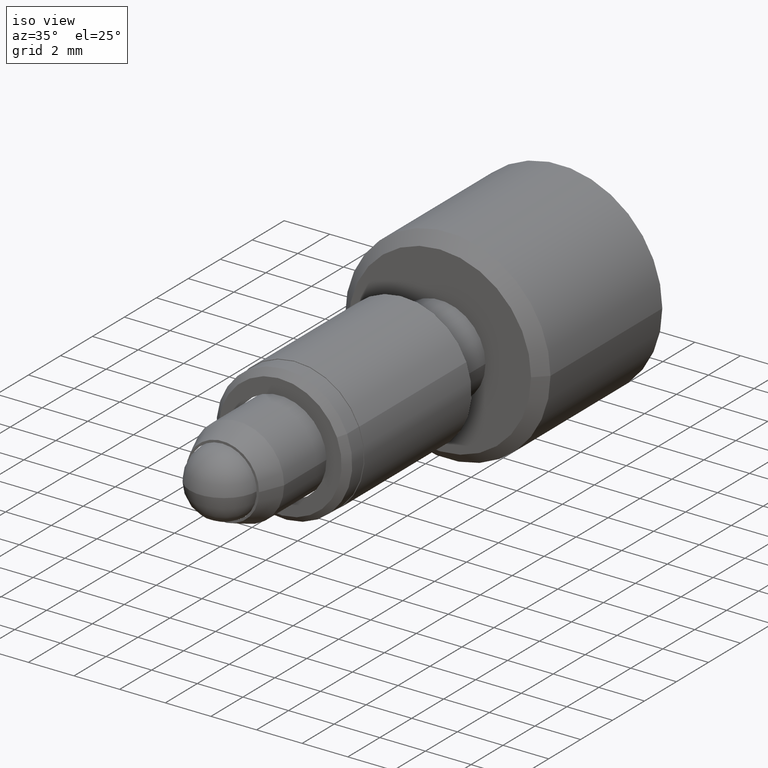
[diagram: clean part render]
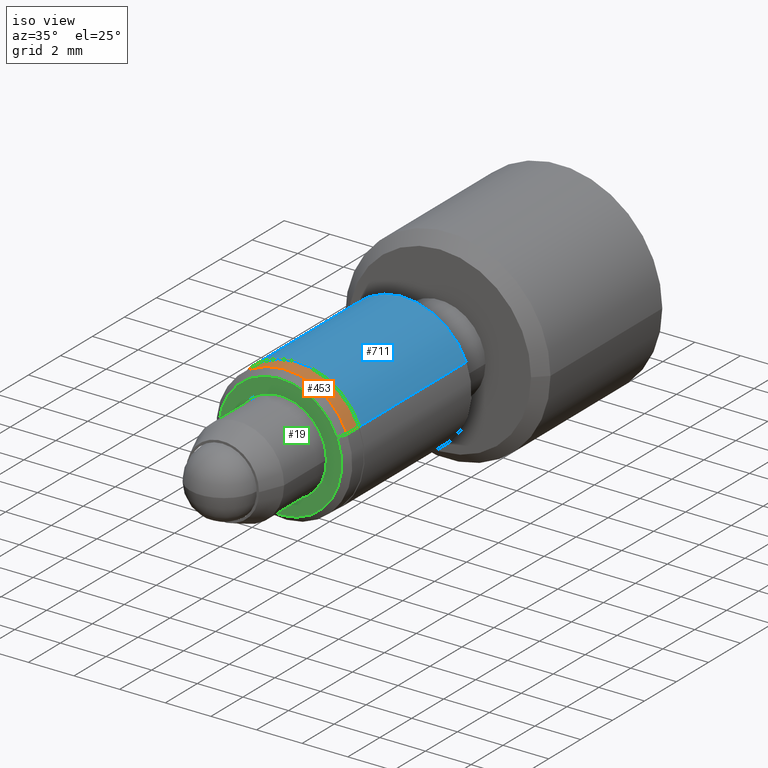
[diagram: same view with three faces highlighted in distinct colors, each labeled with its STEP entity id]
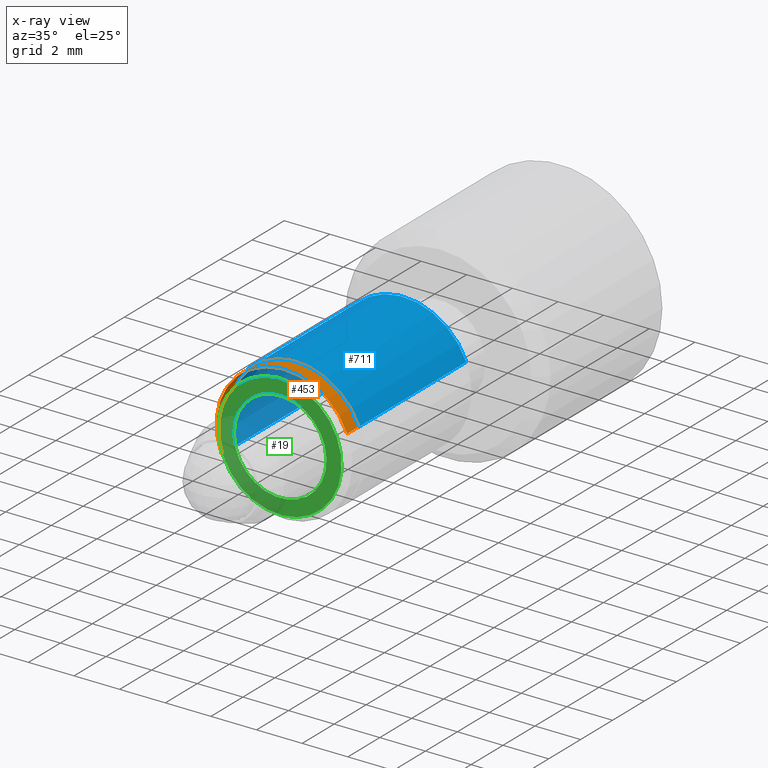
[diagram: x-ray of the same camera — body ghosted, the three highlighted faces saturated]
A machine part, iso view with three faces highlighted in distinct colors.
The next image is the same camera in x-ray (body ghosted, the three faces saturated) — at least one of them is partly hidden behind the body in this view.
Their STEP definitions:

[orange] entity #453 — the highlighted cylindrical surface (partial cylindrical patch) has radius 2.975 mm, axis along (-0, -1, -0).
#7 = DIRECTION ( 'NONE',  ( -0.9234093634715820900, 0.0000000000000000000, -0.3838165544280334200 ) ) ;
#23 = DIRECTION ( 'NONE',  ( -9.496758840798626900E-017, -1.000000000000000000, -3.947342750354810800E-017 ) ) ;
#29 = CARTESIAN_POINT ( 'NONE',  ( 8.886313430823046000, 10.63143070247039500, 17.11623035873974200 ) ) ;
#58 = ORIENTED_EDGE ( 'NONE', *, *, #676, .F. ) ;
#79 = CIRCLE ( 'NONE', #441, 2.974999999999999200 ) ;
#89 = CYLINDRICAL_SURFACE ( 'NONE', #806, 2.974999999999999200 ) ;
#93 = VERTEX_POINT ( 'NONE', #519 ) ;
#95 = DIRECTION ( 'NONE',  ( -9.496758840798596100E-017, -1.000000000000000000, -3.947342750354797800E-017 ) ) ;
#96 = CARTESIAN_POINT ( 'NONE',  ( 6.139170574495089700, 10.63143070247039500, 15.97437610931634200 ) ) ;
#115 = CARTESIAN_POINT ( 'NONE',  ( 11.63345628715099300, 9.906430702470395000, 18.25808460816314100 ) ) ;
#244 = ORIENTED_EDGE ( 'NONE', *, *, #304, .T. ) ;
#304 = EDGE_CURVE ( 'NONE', #93, #953, #436, .T. ) ;
#306 = ORIENTED_EDGE ( 'NONE', *, *, #391, .T. ) ;
#358 = DIRECTION ( 'NONE',  ( -9.496758840798626900E-017, -1.000000000000000000, -3.947342750354810800E-017 ) ) ;
#391 = EDGE_CURVE ( 'NONE', #1103, #93, #79, .T. ) ;
#436 = LINE ( 'NONE', #96, #1070 ) ;
#441 = AXIS2_PLACEMENT_3D ( 'NONE', #535, #23, #615 ) ;
#453 = ADVANCED_FACE ( 'NONE', ( #654 ), #89, .T. ) ;
#459 = VECTOR ( 'NONE', #642, 1000.000000000000000 ) ;
#460 = VERTEX_POINT ( 'NONE', #115 ) ;
#519 = CARTESIAN_POINT ( 'NONE',  ( 6.139170574495088000, 10.63143070247039500, 15.97437610931634200 ) ) ;
#523 = DIRECTION ( 'NONE',  ( -9.496758840798626900E-017, -1.000000000000000000, -3.947342750354810800E-017 ) ) ;
#535 = CARTESIAN_POINT ( 'NONE',  ( 8.886313430823046000, 10.63143070247039500, 17.11623035873974200 ) ) ;
#543 = DIRECTION ( 'NONE',  ( 0.9234093634715820900, 0.0000000000000000000, 0.3838165544280337000 ) ) ;
#615 = DIRECTION ( 'NONE',  ( 0.9234093634715820900, 0.0000000000000000000, 0.3838165544280337000 ) ) ;
#642 = DIRECTION ( 'NONE',  ( -9.496758840798626900E-017, -1.000000000000000000, -3.947342750354810800E-017 ) ) ;
#654 = FACE_OUTER_BOUND ( 'NONE', #1001, .T. ) ;
#676 = EDGE_CURVE ( 'NONE', #1103, #460, #1056, .T. ) ;
#750 = EDGE_CURVE ( 'NONE', #460, #953, #950, .T. ) ;
#754 = CARTESIAN_POINT ( 'NONE',  ( 11.63345628715100100, 10.63143070247039500, 18.25808460816314100 ) ) ;
#806 = AXIS2_PLACEMENT_3D ( 'NONE', #29, #358, #543 ) ;
#897 = CARTESIAN_POINT ( 'NONE',  ( 11.63345628715100100, 10.63143070247039500, 18.25808460816314100 ) ) ;
#915 = AXIS2_PLACEMENT_3D ( 'NONE', #1030, #95, #7 ) ;
#940 = ORIENTED_EDGE ( 'NONE', *, *, #750, .F. ) ;
#950 = CIRCLE ( 'NONE', #915, 2.975000000000001000 ) ;
#953 = VERTEX_POINT ( 'NONE', #1067 ) ;
#1001 = EDGE_LOOP ( 'NONE', ( #306, #244, #940, #58 ) ) ;
#1030 = CARTESIAN_POINT ( 'NONE',  ( 8.886313430823038900, 9.906430702470395000, 17.11623035873973800 ) ) ;
#1056 = LINE ( 'NONE', #897, #459 ) ;
#1067 = CARTESIAN_POINT ( 'NONE',  ( 6.139170574495082600, 9.906430702470395000, 15.97437610931633500 ) ) ;
#1070 = VECTOR ( 'NONE', #523, 1000.000000000000000 ) ;
#1103 = VERTEX_POINT ( 'NONE', #754 ) ;

[blue] entity #711 — the highlighted cylindrical surface (partial cylindrical patch) has radius 3 mm, axis along (-0, -1, -0).
#34 = VERTEX_POINT ( 'NONE', #673 ) ;
#41 = CARTESIAN_POINT ( 'NONE',  ( 6.116085340408293500, 10.63143070247039300, 15.96478069545564300 ) ) ;
#57 = CARTESIAN_POINT ( 'NONE',  ( 8.886313430823040700, 10.63143070247039300, 17.11623035873973800 ) ) ;
#65 = DIRECTION ( 'NONE',  ( 0.9234093634715820900, 0.0000000000000000000, 0.3838165544280335900 ) ) ;
#78 = CIRCLE ( 'NONE', #540, 2.999999999999998200 ) ;
#111 = EDGE_LOOP ( 'NONE', ( #1052, #131, #513, #1061 ) ) ;
#131 = ORIENTED_EDGE ( 'NONE', *, *, #1064, .T. ) ;
#139 = DIRECTION ( 'NONE',  ( 0.9234093634715816500, 0.0000000000000000000, 0.3838165544280347500 ) ) ;
#153 = CARTESIAN_POINT ( 'NONE',  ( 8.886313430823033600, -48.60116709090974800, 17.11623035873973800 ) ) ;
#181 = DIRECTION ( 'NONE',  ( -9.496758840798614600E-017, -1.000000000000000000, -3.947342750354805900E-017 ) ) ;
#182 = EDGE_CURVE ( 'NONE', #685, #392, #317, .T. ) ;
#225 = LINE ( 'NONE', #273, #687 ) ;
#259 = CYLINDRICAL_SURFACE ( 'NONE', #367, 2.999999999999998200 ) ;
#273 = CARTESIAN_POINT ( 'NONE',  ( 6.116085340408289100, -48.60116709090974800, 15.96478069545563900 ) ) ;
#308 = DIRECTION ( 'NONE',  ( -9.496758840798626900E-017, -1.000000000000000000, -3.947342750354810800E-017 ) ) ;
#317 = LINE ( 'NONE', #431, #987 ) ;
#367 = AXIS2_PLACEMENT_3D ( 'NONE', #153, #308, #65 ) ;
#370 = EDGE_CURVE ( 'NONE', #685, #34, #957, .T. ) ;
#392 = VERTEX_POINT ( 'NONE', #611 ) ;
#393 = DIRECTION ( 'NONE',  ( 9.496758840798626900E-017, 1.000000000000000000, 3.947342750354810800E-017 ) ) ;
#431 = CARTESIAN_POINT ( 'NONE',  ( 11.65654152123777700, -48.60116709090974800, 18.26768002202383900 ) ) ;
#499 = VERTEX_POINT ( 'NONE', #41 ) ;
#513 = ORIENTED_EDGE ( 'NONE', *, *, #624, .T. ) ;
#540 = AXIS2_PLACEMENT_3D ( 'NONE', #57, #393, #139 ) ;
#556 = CARTESIAN_POINT ( 'NONE',  ( 11.65654152123778300, 17.33143070247038900, 18.26768002202384300 ) ) ;
#564 = AXIS2_PLACEMENT_3D ( 'NONE', #699, #181, #780 ) ;
#602 = DIRECTION ( 'NONE',  ( -9.496758840798626900E-017, -1.000000000000000000, -3.947342750354810800E-017 ) ) ;
#611 = CARTESIAN_POINT ( 'NONE',  ( 11.65654152123778400, 10.63143070247039300, 18.26768002202383900 ) ) ;
#624 = EDGE_CURVE ( 'NONE', #499, #392, #78, .T. ) ;
#673 = CARTESIAN_POINT ( 'NONE',  ( 6.116085340408293500, 17.33143070247038900, 15.96478069545564300 ) ) ;
#685 = VERTEX_POINT ( 'NONE', #556 ) ;
#687 = VECTOR ( 'NONE', #965, 1000.000000000000000 ) ;
#699 = CARTESIAN_POINT ( 'NONE',  ( 8.886313430823040700, 17.33143070247038900, 17.11623035873973800 ) ) ;
#711 = ADVANCED_FACE ( 'NONE', ( #1032 ), #259, .T. ) ;
#780 = DIRECTION ( 'NONE',  ( -0.9234093634715810900, 0.0000000000000000000, -0.3838165544280359700 ) ) ;
#957 = CIRCLE ( 'NONE', #564, 2.999999999999997800 ) ;
#965 = DIRECTION ( 'NONE',  ( -9.496758840798626900E-017, -1.000000000000000000, -3.947342750354810800E-017 ) ) ;
#987 = VECTOR ( 'NONE', #602, 1000.000000000000000 ) ;
#1032 = FACE_OUTER_BOUND ( 'NONE', #111, .T. ) ;
#1052 = ORIENTED_EDGE ( 'NONE', *, *, #370, .T. ) ;
#1061 = ORIENTED_EDGE ( 'NONE', *, *, #182, .F. ) ;
#1064 = EDGE_CURVE ( 'NONE', #34, #499, #225, .T. ) ;

[green] entity #19 — the highlighted planar face has unit normal (-0, -1, -0).
#19 = ADVANCED_FACE ( 'NONE', ( #893, #664 ), #769, .T. ) ;
#72 = EDGE_CURVE ( 'NONE', #482, #224, #766, .T. ) ;
#80 = AXIS2_PLACEMENT_3D ( 'NONE', #210, #810, #291 ) ;
#118 = CARTESIAN_POINT ( 'NONE',  ( 8.105726490226038200, 9.631430702470396500, 18.99421420710463300 ) ) ;
#152 = CIRCLE ( 'NONE', #80, 2.033750060000000900 ) ;
#184 = ORIENTED_EDGE ( 'NONE', *, *, #969, .T. ) ;
#194 = AXIS2_PLACEMENT_3D ( 'NONE', #309, #826, #227 ) ;
#208 = ORIENTED_EDGE ( 'NONE', *, *, #72, .F. ) ;
#210 = CARTESIAN_POINT ( 'NONE',  ( 8.886313430823046000, 9.631430702470396500, 17.11623035873974200 ) ) ;
#224 = VERTEX_POINT ( 'NONE', #753 ) ;
#227 = DIRECTION ( 'NONE',  ( 0.9234093634715818700, -1.028445152981264100E-016, 0.3838165544280340300 ) ) ;
#246 = DIRECTION ( 'NONE',  ( -1.186707531280934900E-048, -1.000000000000000000, 5.657816661802917300E-033 ) ) ;
#249 = CARTESIAN_POINT ( 'NONE',  ( 11.37951871219631400, 9.631430702470396500, 18.15253505569543100 ) ) ;
#291 = DIRECTION ( 'NONE',  ( -0.3838165544280341400, 0.0000000000000000000, 0.9234093634715817600 ) ) ;
#292 = DIRECTION ( 'NONE',  ( 0.9234093634715819800, 0.0000000000000000000, 0.3838165544280337500 ) ) ;
#297 = CARTESIAN_POINT ( 'NONE',  ( 6.393108149449763500, 9.631430702470396500, 16.07992566178404600 ) ) ;
#309 = CARTESIAN_POINT ( 'NONE',  ( 8.886313430823038900, 9.631430702470396500, 17.11623035873973800 ) ) ;
#447 = EDGE_CURVE ( 'NONE', #719, #859, #626, .T. ) ;
#450 = CARTESIAN_POINT ( 'NONE',  ( 8.886313430823038900, 9.631430702470396500, 17.11623035873973800 ) ) ;
#466 = CARTESIAN_POINT ( 'NONE',  ( 8.886313430823038900, 9.631430702470396500, 17.11623035873973800 ) ) ;
#470 = AXIS2_PLACEMENT_3D ( 'NONE', #450, #1053, #541 ) ;
#474 = CIRCLE ( 'NONE', #557, 2.700000000000004600 ) ;
#482 = VERTEX_POINT ( 'NONE', #118 ) ;
#530 = EDGE_LOOP ( 'NONE', ( #755, #184 ) ) ;
#541 = DIRECTION ( 'NONE',  ( 0.9234093634715819800, 0.0000000000000000000, 0.3838165544280337500 ) ) ;
#557 = AXIS2_PLACEMENT_3D ( 'NONE', #466, #730, #292 ) ;
#572 = EDGE_CURVE ( 'NONE', #224, #482, #152, .T. ) ;
#626 = CIRCLE ( 'NONE', #470, 2.700000000000004600 ) ;
#664 = FACE_BOUND ( 'NONE', #702, .T. ) ;
#684 = DIRECTION ( 'NONE',  ( -0.3838165544280341400, 0.0000000000000000000, 0.9234093634715817600 ) ) ;
#702 = EDGE_LOOP ( 'NONE', ( #208, #1044 ) ) ;
#719 = VERTEX_POINT ( 'NONE', #297 ) ;
#730 = DIRECTION ( 'NONE',  ( -9.496758840798626900E-017, -1.000000000000000000, -3.947342750354810800E-017 ) ) ;
#753 = CARTESIAN_POINT ( 'NONE',  ( 9.666900371420052100, 9.631430702470396500, 15.23824651037485200 ) ) ;
#755 = ORIENTED_EDGE ( 'NONE', *, *, #447, .T. ) ;
#764 = CARTESIAN_POINT ( 'NONE',  ( 8.886313430823046000, 9.631430702470396500, 17.11623035873974200 ) ) ;
#766 = CIRCLE ( 'NONE', #815, 2.033750060000000900 ) ;
#769 = PLANE ( 'NONE',  #194 ) ;
#810 = DIRECTION ( 'NONE',  ( -1.186707531280934900E-048, -1.000000000000000000, 5.657816661802917300E-033 ) ) ;
#815 = AXIS2_PLACEMENT_3D ( 'NONE', #764, #246, #684 ) ;
#826 = DIRECTION ( 'NONE',  ( -9.496758840798626900E-017, -1.000000000000000000, -3.947342750354811400E-017 ) ) ;
#859 = VERTEX_POINT ( 'NONE', #249 ) ;
#893 = FACE_OUTER_BOUND ( 'NONE', #530, .T. ) ;
#969 = EDGE_CURVE ( 'NONE', #859, #719, #474, .T. ) ;
#1044 = ORIENTED_EDGE ( 'NONE', *, *, #572, .F. ) ;
#1053 = DIRECTION ( 'NONE',  ( -9.496758840798626900E-017, -1.000000000000000000, -3.947342750354810800E-017 ) ) ;